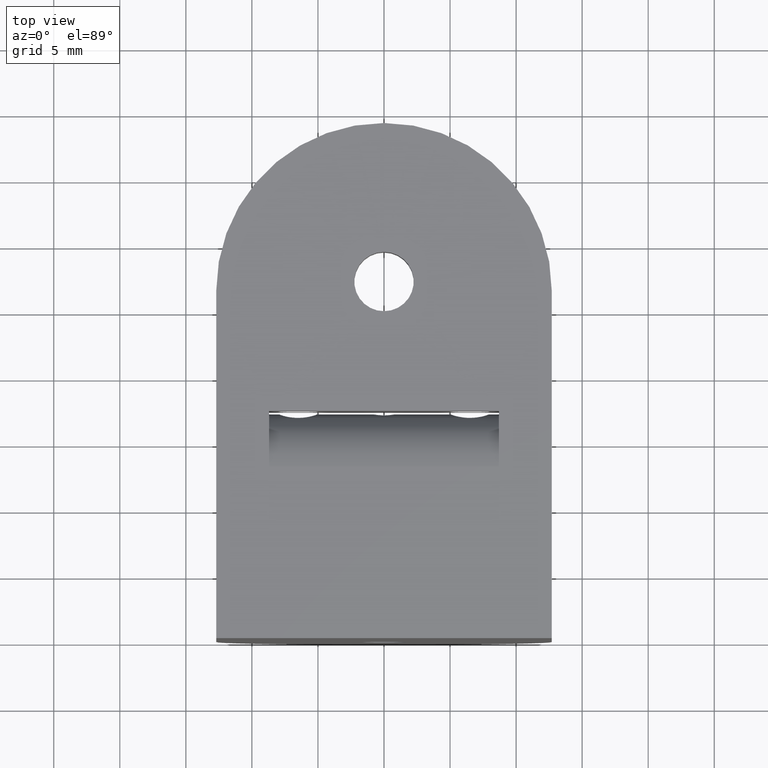
[diagram: clean part render]
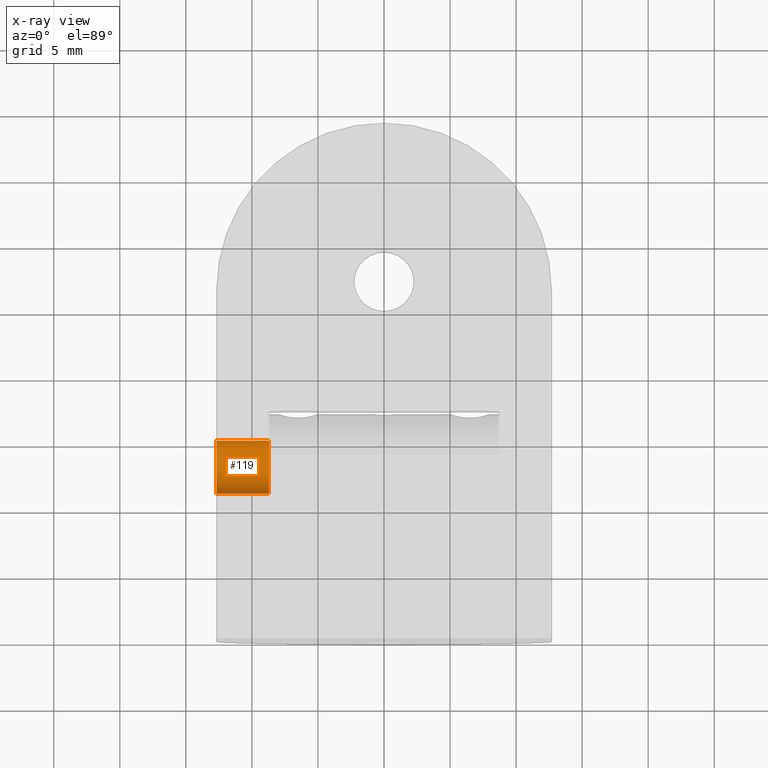
[diagram: x-ray — body ghosted, one internal face saturated and labeled with its STEP entity id]
A machine part, top view, then the same camera in x-ray: the body is ghosted and one INTERNAL B-rep face — a face not visible from any outside direction — is saturated and labeled: STEP entity #119.
In plain terms, the highlighted cylindrical surface (edge-blend (fillet) strip) has radius 2 mm, axis along (-1, 0, 0).
Its self-contained STEP definition (entity closure, byte-faithful):
#80 = EDGE_CURVE ( 'NONE', #306, #2382, #475, .T. ) ;
#119 = ADVANCED_FACE ( 'NONE', ( #2860 ), #2032, .F. ) ;
#238 = EDGE_CURVE ( 'NONE', #2485, #2382, #2379, .T. ) ;
#306 = VERTEX_POINT ( 'NONE', #1034 ) ;
#330 = EDGE_CURVE ( 'NONE', #2354, #306, #1444, .T. ) ;
#420 = EDGE_CURVE ( 'NONE', #2354, #2485, #2075, .T. ) ;
#475 = CIRCLE ( 'NONE', #1719, 1.999999999999996700 ) ;
#543 = DIRECTION ( 'NONE',  ( -1.000000000000000000, 3.398071131305393000E-019, 1.734720147809983500E-016 ) ) ;
#682 = CARTESIAN_POINT ( 'NONE',  ( -12.69999999999999400, 11.00000000000000700, -3.999999999999995600 ) ) ;
#714 = AXIS2_PLACEMENT_3D ( 'NONE', #1308, #1296, #1909 ) ;
#1018 = CARTESIAN_POINT ( 'NONE',  ( -12.69999999999999400, 14.99999999999999600, -3.999999999999995600 ) ) ;
#1034 = CARTESIAN_POINT ( 'NONE',  ( -12.69999999999999400, 14.99999999999999800, -3.999999999999996400 ) ) ;
#1208 = VECTOR ( 'NONE', #1636, 1000.000000000000000 ) ;
#1296 = DIRECTION ( 'NONE',  ( -1.000000000000000000, 3.398071131305393000E-019, 1.734720147809983500E-016 ) ) ;
#1308 = CARTESIAN_POINT ( 'NONE',  ( -12.69999999999999400, 13.00000000000000200, -3.999999999999995600 ) ) ;
#1339 = CARTESIAN_POINT ( 'NONE',  ( -8.699999999999986900, 11.00000000000000700, -3.999999999999996400 ) ) ;
#1382 = VECTOR ( 'NONE', #543, 1000.000000000000000 ) ;
#1428 = AXIS2_PLACEMENT_3D ( 'NONE', #2549, #2733, #2770 ) ;
#1444 = LINE ( 'NONE', #1018, #1382 ) ;
#1636 = DIRECTION ( 'NONE',  ( -1.000000000000000000, 3.398071131305393000E-019, 1.734720147809983500E-016 ) ) ;
#1719 = AXIS2_PLACEMENT_3D ( 'NONE', #2190, #2179, #2168 ) ;
#1909 = DIRECTION ( 'NONE',  ( 0.0000000000000000000, -1.000000000000000000, 0.0000000000000000000 ) ) ;
#2032 = CYLINDRICAL_SURFACE ( 'NONE', #714, 1.999999999999994900 ) ;
#2075 = CIRCLE ( 'NONE', #1428, 1.999999999999994900 ) ;
#2091 = CARTESIAN_POINT ( 'NONE',  ( -8.699999999999986900, 14.99999999999999600, -3.999999999999996400 ) ) ;
#2133 = CARTESIAN_POINT ( 'NONE',  ( -12.69999999999999400, 11.00000000000000500, -3.999999999999995600 ) ) ;
#2168 = DIRECTION ( 'NONE',  ( 0.0000000000000000000, -1.000000000000000000, 0.0000000000000000000 ) ) ;
#2179 = DIRECTION ( 'NONE',  ( -1.000000000000000000, 3.398071131305393000E-019, 1.734720147809983500E-016 ) ) ;
#2190 = CARTESIAN_POINT ( 'NONE',  ( -12.69999999999999400, 13.00000000000000200, -3.999999999999995600 ) ) ;
#2256 = ORIENTED_EDGE ( 'NONE', *, *, #420, .F. ) ;
#2261 = ORIENTED_EDGE ( 'NONE', *, *, #330, .T. ) ;
#2340 = ORIENTED_EDGE ( 'NONE', *, *, #80, .T. ) ;
#2354 = VERTEX_POINT ( 'NONE', #2091 ) ;
#2379 = LINE ( 'NONE', #682, #1208 ) ;
#2382 = VERTEX_POINT ( 'NONE', #2133 ) ;
#2409 = ORIENTED_EDGE ( 'NONE', *, *, #238, .F. ) ;
#2485 = VERTEX_POINT ( 'NONE', #1339 ) ;
#2549 = CARTESIAN_POINT ( 'NONE',  ( -8.699999999999986900, 13.00000000000000200, -3.999999999999996400 ) ) ;
#2706 = EDGE_LOOP ( 'NONE', ( #2256, #2261, #2340, #2409 ) ) ;
#2733 = DIRECTION ( 'NONE',  ( -1.000000000000000000, 1.738121547108112200E-016, 1.734720147809983500E-016 ) ) ;
#2770 = DIRECTION ( 'NONE',  ( 0.0000000000000000000, -1.000000000000000000, 0.0000000000000000000 ) ) ;
#2860 = FACE_OUTER_BOUND ( 'NONE', #2706, .T. ) ;